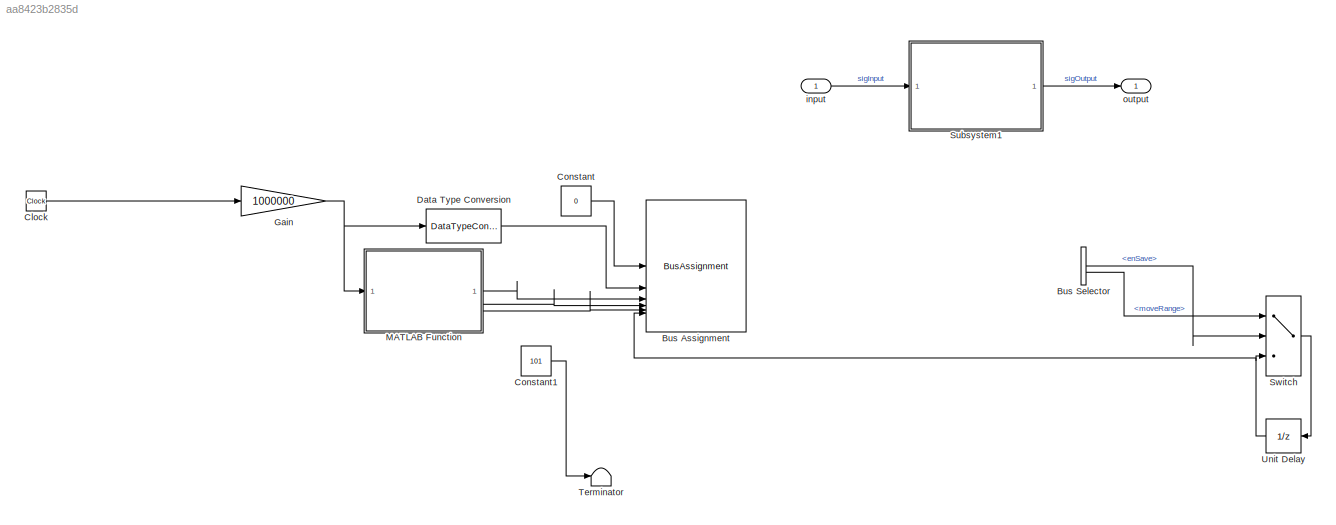
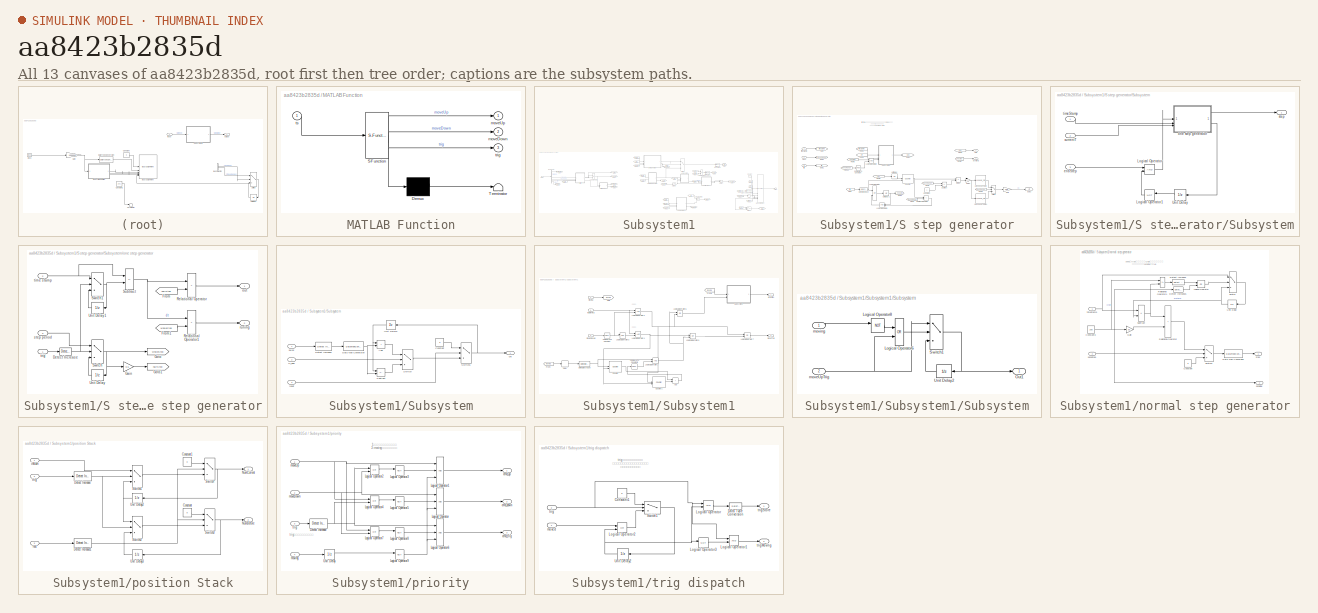
[diagram: thumbnail index - all 13 canvases of the model, root first then tree order]
MODEL slx_aa8423b2835d
KIND model
CONFIG AbsTol = auto
CONFIG EnableMultiTasking = on
CONFIG FixedStep = 0.0001
CONFIG MaxStep = auto
CONFIG MinStep = auto
CONFIG RelTol = 1e-3
CONFIG SampleTimeConstraint = Unconstrained
CONFIG SolverName = FixedStepDiscrete
CONFIG StartTime = 0.0
CONFIG StopTime = 0.5
BLOCK [BusAssignment] Bus Assignment
  AssignedSignals = timeStamp,moveUp,moveDown,trig,steps
  Commented = on
BLOCK [BusSelector] Bus Selector
  Commented = on
  OutputSignals = enSave,moveRange
BLOCK [Clock] Clock
  Commented = on
BLOCK [Constant] Constant
  Commented = on
  OutDataTypeStr = Bus: inStruct
  Value = 0
BLOCK [Constant] Constant1
  Commented = on
  OutDataTypeStr = uint32
  Value = 101
BLOCK [DataTypeConversion] Data Type Conversion
  Commented = on
  RndMeth = Floor
  SaturateOnIntegerOverflow = off
BLOCK [Gain] Gain
  Commented = on
  Gain = 1000000
  OutDataTypeStr = uint64
BLOCK [SubSystem] MATLAB Function
  Commented = on
  ErrorFcn = Stateflow.Translate.translate
  PermitHierarchicalResolution = ExplicitOnly
  SFBlockType = MATLAB Function
  TreatAsAtomicUnit = on
BLOCK [Demux] MATLAB Function/ Demux 
  Outputs = 1
BLOCK [S-Function] MATLAB Function/ SFunction 
  EnableBusSupport = on
  FunctionName = sf_sfun
  PortCounts = [1 4]
  SFcnIsStateOwnerBlock = off
  SFunctionDeploymentMode = off
  Tag = Stateflow S-Function 2
BLOCK [Terminator] MATLAB Function/ Terminator 
BLOCK [Outport] MATLAB Function/moveDown
  Port = 2
BLOCK [Outport] MATLAB Function/moveUp
BLOCK [Outport] MATLAB Function/trig
  Port = 3
BLOCK [Inport] MATLAB Function/ts
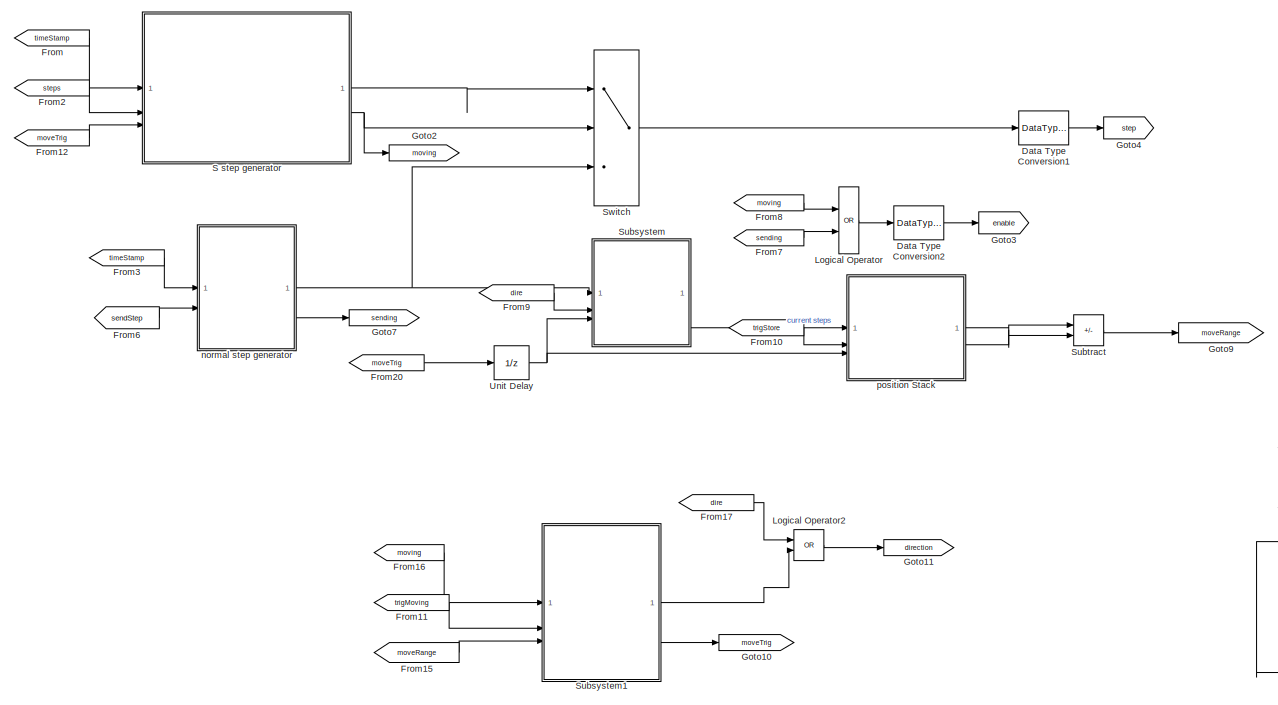
[diagram: Subsystem1 - part 1/3, center side, full height]
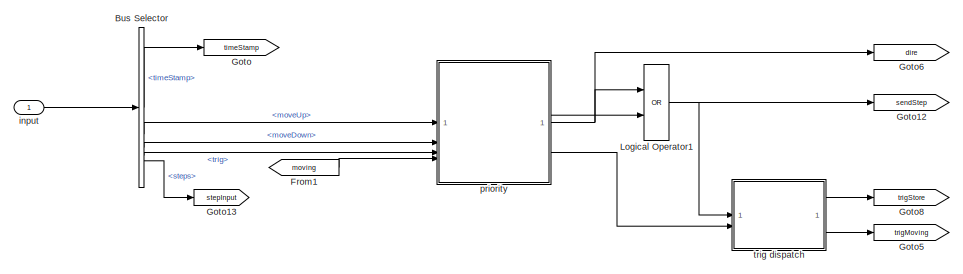
[diagram: Subsystem1 - part 2/3, middle left region]
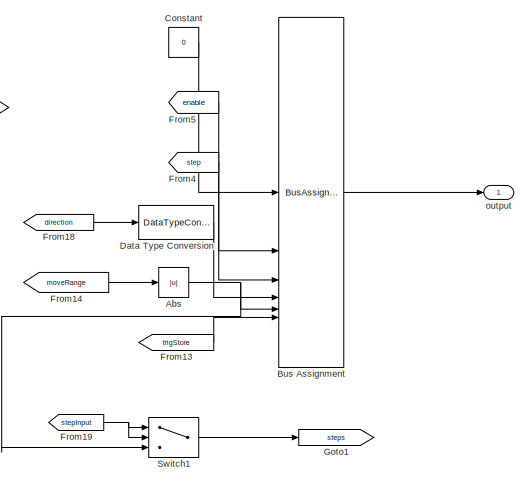
[diagram: Subsystem1 - part 3/3, middle right region]
BLOCK [SubSystem] Subsystem1
BLOCK [Abs] Subsystem1/Abs
  SaturateOnIntegerOverflow = off
BLOCK [BusAssignment] Subsystem1/Bus Assignment
  AssignedSignals = enable,step,direction,moveRange,enSave
BLOCK [BusSelector] Subsystem1/Bus Selector
  OutputSignals = timeStamp,moveUp,moveDown,trig,steps
BLOCK [Constant] Subsystem1/Constant
  OutDataTypeStr = Bus: outStruct
  Value = 0
BLOCK [DataTypeConversion] Subsystem1/Data Type Conversion
  RndMeth = Floor
  SaturateOnIntegerOverflow = off
BLOCK [DataTypeConversion] Subsystem1/Data Type Conversion1
  OutDataTypeStr = uint8
  RndMeth = Floor
  SaturateOnIntegerOverflow = off
BLOCK [DataTypeConversion] Subsystem1/Data Type Conversion2
  OutDataTypeStr = uint8
  RndMeth = Floor
  SaturateOnIntegerOverflow = off
BLOCK [From] Subsystem1/From
  GotoTag = timeStamp
BLOCK [From] Subsystem1/From1
  GotoTag = moving
BLOCK [From] Subsystem1/From10
  GotoTag = trigStore
BLOCK [From] Subsystem1/From11
  GotoTag = trigMoving
BLOCK [From] Subsystem1/From12
  GotoTag = moveTrig
BLOCK [From] Subsystem1/From13
  GotoTag = trigStore
BLOCK [From] Subsystem1/From14
  GotoTag = moveRange
BLOCK [From] Subsystem1/From15
  GotoTag = moveRange
BLOCK [From] Subsystem1/From16
  GotoTag = moving
BLOCK [From] Subsystem1/From17
  GotoTag = dire
BLOCK [From] Subsystem1/From18
  GotoTag = direction
BLOCK [From] Subsystem1/From19
  GotoTag = stepInput
BLOCK [From] Subsystem1/From2
  GotoTag = steps
BLOCK [From] Subsystem1/From20
  GotoTag = moveTrig
BLOCK [From] Subsystem1/From3
  GotoTag = timeStamp
BLOCK [From] Subsystem1/From4
  GotoTag = step
BLOCK [From] Subsystem1/From5
  GotoTag = enable
BLOCK [From] Subsystem1/From6
  GotoTag = sendStep
BLOCK [From] Subsystem1/From7
  GotoTag = sending
BLOCK [From] Subsystem1/From8
  GotoTag = moving
BLOCK [From] Subsystem1/From9
  GotoTag = dire
BLOCK [Goto] Subsystem1/Goto
  GotoTag = timeStamp
BLOCK [Goto] Subsystem1/Goto1
  GotoTag = steps
BLOCK [Goto] Subsystem1/Goto10
  GotoTag = moveTrig
BLOCK [Goto] Subsystem1/Goto11
  GotoTag = direction
BLOCK [Goto] Subsystem1/Goto12
  GotoTag = sendStep
BLOCK [Goto] Subsystem1/Goto13
  GotoTag = stepInput
BLOCK [Goto] Subsystem1/Goto2
  GotoTag = moving
BLOCK [Goto] Subsystem1/Goto3
  GotoTag = enable
BLOCK [Goto] Subsystem1/Goto4
  GotoTag = step
BLOCK [Goto] Subsystem1/Goto5
  GotoTag = trigMoving
BLOCK [Goto] Subsystem1/Goto6
  GotoTag = dire
BLOCK [Goto] Subsystem1/Goto7
  GotoTag = sending
BLOCK [Goto] Subsystem1/Goto8
  GotoTag = trigStore
BLOCK [Goto] Subsystem1/Goto9
  GotoTag = moveRange
BLOCK [Logic] Subsystem1/Logical Operator
  AllPortsSameDT = off
  Operator = OR
  OutDataTypeStr = boolean
BLOCK [Logic] Subsystem1/Logical Operator1
  AllPortsSameDT = off
  Operator = OR
  OutDataTypeStr = boolean
BLOCK [Logic] Subsystem1/Logical Operator2
  AllPortsSameDT = off
  Operator = OR
  OutDataTypeStr = boolean
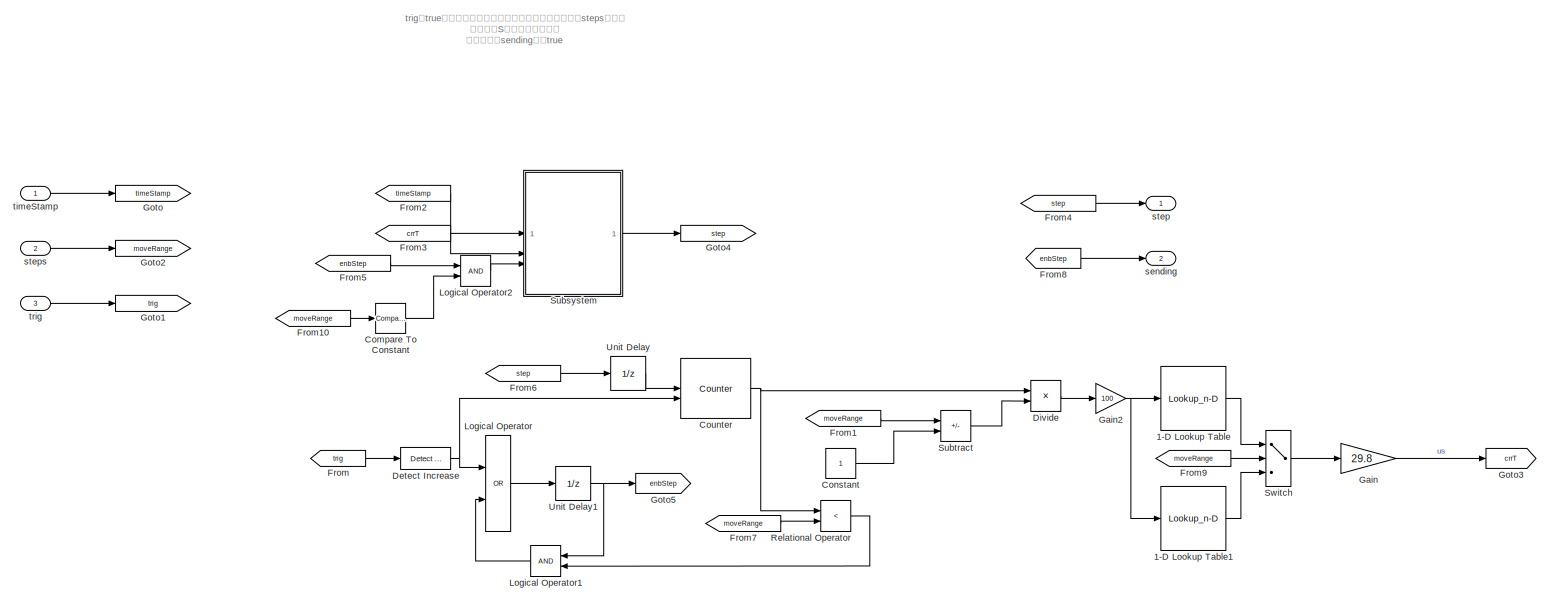
[diagram: Subsystem1/S step generator - part 1/1, most of the canvas]
BLOCK [SubSystem] Subsystem1/S step generator
BLOCK [Lookup_n-D] Subsystem1/S step generator/1-D Lookup Table
  BreakpointsForDimension1 = [0;1;2;3;4;5;6;94;95;96;97;98;99;100]
  ExtrapMethod = Clip
  InputPortMap = u0
  InternalRulePriority = Speed
  NumberOfTableDimensions = 1
  RndMeth = Simplest
  Table = [10.0250134994341;4.32011692273655;2.22140275816017;1.44932896411722;1.16529888822159;1.06081006262522;1.02237077185617;1.02237077185617;1.06081006262522;1.16529888822159;1.44932896411722;2.22140275816017;4.32011692273655;10.0250134994341]
  UseLastTableValue = on
BLOCK [Lookup_n-D] Subsystem1/S step generator/1-D Lookup Table1
  BreakpointsForDimension1 = [0;1;3;6;10;16;25;74;85;91;95;98;99;100]
  ExtrapMethod = Clip
  InputPortMap = u0
  InternalRulePriority = Speed
  NumberOfTableDimensions = 1
  RndMeth = Simplest
  Table = [10;9.1;7.6;5.8;4;2.3;1;1;2.3;4;5.8;7.6;9.1;10]
  UseLastTableValue = on
BLOCK [Reference] Subsystem1/S step generator/Compare To Constant  REF=simulink/Logic and Bit
Operations/Compare
To Constant
  SourceBlock = simulink/Logic and Bit\nOperations/Compare\nTo Constant
  SourceType = Compare To Constant
BLOCK [Constant] Subsystem1/S step generator/Constant
BLOCK [Reference] Subsystem1/S step generator/Counter  REF=dspswit3/Counter
  SourceBlock = dspswit3/Counter
  SourceType = Counter
BLOCK [Reference] Subsystem1/S step generator/Detect Increase  REF=simulink/Logic and Bit
Operations/Detect
Increase
  SourceBlock = simulink/Logic and Bit\nOperations/Detect\nIncrease
  SourceType = Detect Increase
BLOCK [Product] Subsystem1/S step generator/Divide
  Inputs = */
  OutDataTypeStr = single
BLOCK [From] Subsystem1/S step generator/From
  GotoTag = trig
BLOCK [From] Subsystem1/S step generator/From1
  GotoTag = moveRange
BLOCK [From] Subsystem1/S step generator/From10
  GotoTag = moveRange
BLOCK [From] Subsystem1/S step generator/From2
  GotoTag = timeStamp
BLOCK [From] Subsystem1/S step generator/From3
  GotoTag = crrT
BLOCK [From] Subsystem1/S step generator/From4
  GotoTag = step
BLOCK [From] Subsystem1/S step generator/From5
  GotoTag = enbStep
BLOCK [From] Subsystem1/S step generator/From6
  GotoTag = step
BLOCK [From] Subsystem1/S step generator/From7
  GotoTag = moveRange
BLOCK [From] Subsystem1/S step generator/From8
  GotoTag = enbStep
BLOCK [From] Subsystem1/S step generator/From9
  GotoTag = moveRange
BLOCK [Gain] Subsystem1/S step generator/Gain
  Gain = 29.8
BLOCK [Gain] Subsystem1/S step generator/Gain2
  Gain = 100
BLOCK [Goto] Subsystem1/S step generator/Goto
  GotoTag = timeStamp
BLOCK [Goto] Subsystem1/S step generator/Goto1
  GotoTag = trig
BLOCK [Goto] Subsystem1/S step generator/Goto2
  GotoTag = moveRange
BLOCK [Goto] Subsystem1/S step generator/Goto3
  GotoTag = crrT
BLOCK [Goto] Subsystem1/S step generator/Goto4
  GotoTag = step
BLOCK [Goto] Subsystem1/S step generator/Goto5
  GotoTag = enbStep
BLOCK [Logic] Subsystem1/S step generator/Logical Operator
  AllPortsSameDT = off
  Operator = OR
  OutDataTypeStr = boolean
BLOCK [Logic] Subsystem1/S step generator/Logical Operator1
  AllPortsSameDT = off
  OutDataTypeStr = boolean
BLOCK [Logic] Subsystem1/S step generator/Logical Operator2
  AllPortsSameDT = off
  OutDataTypeStr = boolean
BLOCK [RelationalOperator] Subsystem1/S step generator/Relational Operator
  InputSameDT = off
  Operator = <
  OutDataTypeStr = boolean
  RndMeth = Simplest
BLOCK [SubSystem] Subsystem1/S step generator/Subsystem
BLOCK [Logic] Subsystem1/S step generator/Subsystem/Logical Operator
  AllPortsSameDT = off
  OutDataTypeStr = boolean
BLOCK [Logic] Subsystem1/S step generator/Subsystem/Logical Operator1
  AllPortsSameDT = off
  Operator = NOT
  OutDataTypeStr = boolean
BLOCK [UnitDelay] Subsystem1/S step generator/Subsystem/Unit Delay
  HasFrameUpgradeWarning = on
  SampleTime = -1
BLOCK [Inport] Subsystem1/S step generator/Subsystem/currentT
  Port = 2
BLOCK [Inport] Subsystem1/S step generator/Subsystem/enbStep
  Port = 3
BLOCK [SubSystem] Subsystem1/S step generator/Subsystem/one step generator
BLOCK [Reference] Subsystem1/S step generator/Subsystem/one step generator/Detect Increase  REF=simulink/Logic and Bit
Operations/Detect
Increase
  SourceBlock = simulink/Logic and Bit\nOperations/Detect\nIncrease
  SourceType = Detect Increase
BLOCK [From] Subsystem1/S step generator/Subsystem/one step generator/From
  GotoTag = halfStep
BLOCK [From] Subsystem1/S step generator/Subsystem/one step generator/From1
  GotoTag = wholeStep
BLOCK [Gain] Subsystem1/S step generator/Subsystem/one step generator/Gain
  Gain = 0.5
BLOCK [Goto] Subsystem1/S step generator/Subsystem/one step generator/Goto
  GotoTag = wholeStep
BLOCK [Goto] Subsystem1/S step generator/Subsystem/one step generator/Goto1
  GotoTag = halfStep
BLOCK [RelationalOperator] Subsystem1/S step generator/Subsystem/one step generator/Relational Operator
  InputSameDT = off
  Operator = <
  OutDataTypeStr = boolean
  RndMeth = Simplest
BLOCK [RelationalOperator] Subsystem1/S step generator/Subsystem/one step generator/Relational Operator1
  InputSameDT = off
  Operator = <
  OutDataTypeStr = boolean
  RndMeth = Simplest
BLOCK [Sum] Subsystem1/S step generator/Subsystem/one step generator/Subtract
  IconShape = rectangular
  Inputs = +-
BLOCK [Switch] Subsystem1/S step generator/Subsystem/one step generator/Switch
  Criteria = u2 > Threshold
  InputSameDT = off
  SaturateOnIntegerOverflow = off
BLOCK [Switch] Subsystem1/S step generator/Subsystem/one step generator/Switch1
  Criteria = u2 > Threshold
  InputSameDT = off
  SaturateOnIntegerOverflow = off
BLOCK [UnitDelay] Subsystem1/S step generator/Subsystem/one step generator/Unit Delay
  HasFrameUpgradeWarning = on
  SampleTime = -1
BLOCK [UnitDelay] Subsystem1/S step generator/Subsystem/one step generator/Unit Delay1
  HasFrameUpgradeWarning = on
  SampleTime = -1
BLOCK [Outport] Subsystem1/S step generator/Subsystem/one step generator/out
BLOCK [Outport] Subsystem1/S step generator/Subsystem/one step generator/runing
  Port = 2
BLOCK [Inport] Subsystem1/S step generator/Subsystem/one step generator/step period
  Port = 3
BLOCK [Inport] Subsystem1/S step generator/Subsystem/one step generator/time stamp
  Port = 2
BLOCK [Inport] Subsystem1/S step generator/Subsystem/one step generator/trig
BLOCK [Outport] Subsystem1/S step generator/Subsystem/step
BLOCK [Inport] Subsystem1/S step generator/Subsystem/timeStamp
BLOCK [Sum] Subsystem1/S step generator/Subtract
  IconShape = rectangular
  Inputs = +-
BLOCK [Switch] Subsystem1/S step generator/Switch
  Criteria = u2 > Threshold
  InputSameDT = off
  SaturateOnIntegerOverflow = off
  Threshold = 200
BLOCK [UnitDelay] Subsystem1/S step generator/Unit Delay
  HasFrameUpgradeWarning = on
  SampleTime = -1
BLOCK [UnitDelay] Subsystem1/S step generator/Unit Delay1
  HasFrameUpgradeWarning = on
  SampleTime = -1
BLOCK [Outport] Subsystem1/S step generator/sending
  Port = 2
BLOCK [Outport] Subsystem1/S step generator/step
BLOCK [Inport] Subsystem1/S step generator/steps
  Port = 2
BLOCK [Inport] Subsystem1/S step generator/timeStamp
BLOCK [Inport] Subsystem1/S step generator/trig
  Port = 3
BLOCK [SubSystem] Subsystem1/Subsystem
BLOCK [Sum] Subsystem1/Subsystem/Add
  IconShape = rectangular
BLOCK [Constant] Subsystem1/Subsystem/Constant
  OutDataTypeStr = int32
  Value = 0
BLOCK [DataTypeConversion] Subsystem1/Subsystem/Data Type Conversion
  OutDataTypeStr = uint8
  RndMeth = Floor
  SaturateOnIntegerOverflow = off
BLOCK [Reference] Subsystem1/Subsystem/Detect Increase  REF=simulink/Logic and Bit
Operations/Detect
Increase
  SourceBlock = simulink/Logic and Bit\nOperations/Detect\nIncrease
  SourceType = Detect Increase
BLOCK [Sum] Subsystem1/Subsystem/Subtract
  IconShape = rectangular
  Inputs = +-
BLOCK [Switch] Subsystem1/Subsystem/Switch
  Criteria = u2 > Threshold
  InputSameDT = off
  SaturateOnIntegerOverflow = off
BLOCK [Switch] Subsystem1/Subsystem/Switch1
  Criteria = u2 > Threshold
  InputSameDT = off
  OutDataTypeStr = int32
  SaturateOnIntegerOverflow = off
BLOCK [UnitDelay] Subsystem1/Subsystem/Unit Delay2
  HasFrameUpgradeWarning = on
  SampleTime = -1
BLOCK [Outport] Subsystem1/Subsystem/cnt
BLOCK [Inport] Subsystem1/Subsystem/is_add
  Port = 2
BLOCK [Inport] Subsystem1/Subsystem/pulse
BLOCK [Inport] Subsystem1/Subsystem/reset
  Port = 3
BLOCK [SubSystem] Subsystem1/Subsystem1
BLOCK [Sum] Subsystem1/Subsystem1/Add
  IconShape = rectangular
BLOCK [Reference] Subsystem1/Subsystem1/Compare To Constant  REF=simulink/Logic and Bit
Operations/Compare
To Constant
  SourceBlock = simulink/Logic and Bit\nOperations/Compare\nTo Constant
  SourceType = Compare To Constant
BLOCK [Reference] Subsystem1/Subsystem1/Compare To Constant1  REF=simulink/Logic and Bit
Operations/Compare
To Constant
  SourceBlock = simulink/Logic and Bit\nOperations/Compare\nTo Constant
  SourceType = Compare To Constant
BLOCK [Reference] Subsystem1/Subsystem1/Counter  REF=dspswit3/Counter
  SourceBlock = dspswit3/Counter
  SourceType = Counter
BLOCK [Reference] Subsystem1/Subsystem1/Counter1  REF=dspswit3/Counter
  SourceBlock = dspswit3/Counter
  SourceType = Counter
BLOCK [Delay] Subsystem1/Subsystem1/Delay
  DelayLength = 1000
  InputPortMap = u0
BLOCK [Reference] Subsystem1/Subsystem1/Detect Decrease  REF=simulink/Logic and Bit
Operations/Detect
Decrease
  SourceBlock = simulink/Logic and Bit\nOperations/Detect\nDecrease
  SourceType = Detect Decrease
BLOCK [From] Subsystem1/Subsystem1/From
  GotoTag = moving
BLOCK [From] Subsystem1/Subsystem1/From1
  GotoTag = moving
BLOCK [Goto] Subsystem1/Subsystem1/Goto
  GotoTag = moving
BLOCK [Logic] Subsystem1/Subsystem1/Logical Operator1
  AllPortsSameDT = off
  OutDataTypeStr = boolean
BLOCK [Logic] Subsystem1/Subsystem1/Logical Operator2
  AllPortsSameDT = off
  OutDataTypeStr = boolean
BLOCK [Logic] Subsystem1/Subsystem1/Logical Operator3
  AllPortsSameDT = off
  Operator = NOT
  OutDataTypeStr = boolean
BLOCK [Logic] Subsystem1/Subsystem1/Logical Operator4
  AllPortsSameDT = off
  OutDataTypeStr = boolean
BLOCK [Logic] Subsystem1/Subsystem1/Logical Operator5
  AllPortsSameDT = off
  Operator = OR
  OutDataTypeStr = boolean
BLOCK [Logic] Subsystem1/Subsystem1/Logical Operator7
  AllPortsSameDT = off
  Operator = OR
  OutDataTypeStr = boolean
BLOCK [Logic] Subsystem1/Subsystem1/Logical Operator9
  AllPortsSameDT = off
  Operator = OR
  OutDataTypeStr = boolean
BLOCK [SubSystem] Subsystem1/Subsystem1/Subsystem
BLOCK [Logic] Subsystem1/Subsystem1/Subsystem/Logical Operator6
  AllPortsSameDT = off
  Operator = OR
  OutDataTypeStr = boolean
BLOCK [Logic] Subsystem1/Subsystem1/Subsystem/Logical Operator8
  AllPortsSameDT = off
  Operator = NOT
  OutDataTypeStr = boolean
BLOCK [Outport] Subsystem1/Subsystem1/Subsystem/Out1
BLOCK [Switch] Subsystem1/Subsystem1/Subsystem/Switch1
  Criteria = u2 > Threshold
  InputSameDT = off
  SaturateOnIntegerOverflow = off
BLOCK [UnitDelay] Subsystem1/Subsystem1/Subsystem/Unit Delay2
  HasFrameUpgradeWarning = on
  SampleTime = -1
BLOCK [Inport] Subsystem1/Subsystem1/Subsystem/moveUpTrig
  Port = 2
BLOCK [Inport] Subsystem1/Subsystem1/Subsystem/moving
BLOCK [Outport] Subsystem1/Subsystem1/direction
BLOCK [Inport] Subsystem1/Subsystem1/moveRange
  Port = 3
BLOCK [Outport] Subsystem1/Subsystem1/moveTrig
  Port = 2
BLOCK [Inport] Subsystem1/Subsystem1/moving
BLOCK [Inport] Subsystem1/Subsystem1/trigMoving
  Port = 2
BLOCK [Sum] Subsystem1/Subtract
  IconShape = rectangular
  Inputs = +-
BLOCK [Switch] Subsystem1/Switch
  Criteria = u2 > Threshold
  InputSameDT = off
  SaturateOnIntegerOverflow = off
BLOCK [Switch] Subsystem1/Switch1
  Criteria = u2 > Threshold
  InputSameDT = off
  SaturateOnIntegerOverflow = off
BLOCK [UnitDelay] Subsystem1/Unit Delay
  HasFrameUpgradeWarning = on
  SampleTime = -1
BLOCK [Inport] Subsystem1/input
BLOCK [SubSystem] Subsystem1/normal step generator
BLOCK [Constant] Subsystem1/normal step generator/Constant
  OutDataTypeStr = boolean
  Value = 0
BLOCK [Constant] Subsystem1/normal step generator/Constant3
  Value = 298
BLOCK [DataTypeConversion] Subsystem1/normal step generator/Data Type Conversion
  OutDataTypeStr = uint8
  RndMeth = Floor
  SaturateOnIntegerOverflow = off
BLOCK [Reference] Subsystem1/normal step generator/Detect Increase  REF=simulink/Logic and Bit
Operations/Detect
Increase
  SourceBlock = simulink/Logic and Bit\nOperations/Detect\nIncrease
  SourceType = Detect Increase
BLOCK [Reference] Subsystem1/normal step generator/Detect Increase1  REF=simulink/Logic and Bit
Operations/Detect
Increase
  SourceBlock = simulink/Logic and Bit\nOperations/Detect\nIncrease
  SourceType = Detect Increase
BLOCK [Gain] Subsystem1/normal step generator/Gain
  Gain = 0.5
BLOCK [Logic] Subsystem1/normal step generator/Logical Operator
  AllPortsSameDT = off
  Operator = OR
  OutDataTypeStr = boolean
BLOCK [RelationalOperator] Subsystem1/normal step generator/Relational Operator
  InputSameDT = off
  Operator = <
  OutDataTypeStr = boolean
  RndMeth = Simplest
BLOCK [RelationalOperator] Subsystem1/normal step generator/Relational Operator1
  InputSameDT = off
  Operator = <=
  OutDataTypeStr = boolean
  RndMeth = Simplest
BLOCK [Sum] Subsystem1/normal step generator/Subtract
  IconShape = rectangular
  Inputs = +-
BLOCK [Switch] Subsystem1/normal step generator/Switch
  Criteria = u2 > Threshold
  InputSameDT = off
  SaturateOnIntegerOverflow = off
BLOCK [Switch] Subsystem1/normal step generator/Switch1
  Criteria = u2 > Threshold
  InputSameDT = off
  SaturateOnIntegerOverflow = off
BLOCK [UnitDelay] Subsystem1/normal step generator/Unit Delay
  HasFrameUpgradeWarning = on
  SampleTime = -1
BLOCK [Inport] Subsystem1/normal step generator/sendStep
  Port = 2
BLOCK [Outport] Subsystem1/normal step generator/sending
  Port = 2
BLOCK [Outport] Subsystem1/normal step generator/step
BLOCK [Inport] Subsystem1/normal step generator/timeStamp
BLOCK [Outport] Subsystem1/output
BLOCK [SubSystem] Subsystem1/position Stack
BLOCK [Constant] Subsystem1/position Stack/Constant
  OutDataTypeStr = int32
  Value = 0
BLOCK [Constant] Subsystem1/position Stack/Constant1
  OutDataTypeStr = int32
  Value = 0
BLOCK [Reference] Subsystem1/position Stack/Detect Increase  REF=simulink/Logic and Bit
Operations/Detect
Increase
  SourceBlock = simulink/Logic and Bit\nOperations/Detect\nIncrease
  SourceType = Detect Increase
BLOCK [Reference] Subsystem1/position Stack/Detect Increase1  REF=simulink/Logic and Bit
Operations/Detect
Increase
  SourceBlock = simulink/Logic and Bit\nOperations/Detect\nIncrease
  SourceType = Detect Increase
BLOCK [Outport] Subsystem1/position Stack/NumBefore
  Port = 2
BLOCK [Outport] Subsystem1/position Stack/NumCurrent
BLOCK [Switch] Subsystem1/position Stack/Switch
  Criteria = u2 > Threshold
  InputSameDT = off
  SaturateOnIntegerOverflow = off
BLOCK [Switch] Subsystem1/position Stack/Switch1
  Criteria = u2 > Threshold
  InputSameDT = off
  SaturateOnIntegerOverflow = off
BLOCK [Switch] Subsystem1/position Stack/Switch2
  Criteria = u2 > Threshold
  InputSameDT = off
  SaturateOnIntegerOverflow = off
BLOCK [Switch] Subsystem1/position Stack/Switch3
  Criteria = u2 > Threshold
  InputSameDT = off
  SaturateOnIntegerOverflow = off
BLOCK [UnitDelay] Subsystem1/position Stack/Unit Delay2
  HasFrameUpgradeWarning = on
  SampleTime = -1
BLOCK [UnitDelay] Subsystem1/position Stack/Unit Delay3
  HasFrameUpgradeWarning = on
  SampleTime = -1
BLOCK [Inport] Subsystem1/position Stack/inNum
BLOCK [Inport] Subsystem1/position Stack/rest
  Port = 3
BLOCK [Inport] Subsystem1/position Stack/trig
  Port = 2
BLOCK [SubSystem] Subsystem1/priority
BLOCK [Reference] Subsystem1/priority/Detect Increase  REF=simulink/Logic and Bit
Operations/Detect
Increase
  SourceBlock = simulink/Logic and Bit\nOperations/Detect\nIncrease
  SourceType = Detect Increase
BLOCK [Logic] Subsystem1/priority/Logical Operator
  AllPortsSameDT = off
  Inputs = 3
  OutDataTypeStr = boolean
BLOCK [Logic] Subsystem1/priority/Logical Operator1
  AllPortsSameDT = off
  Inputs = 3
  OutDataTypeStr = boolean
BLOCK [Logic] Subsystem1/priority/Logical Operator2
  AllPortsSameDT = off
  Operator = OR
  OutDataTypeStr = boolean
BLOCK [Logic] Subsystem1/priority/Logical Operator3
  AllPortsSameDT = off
  Operator = NOT
  OutDataTypeStr = boolean
BLOCK [Logic] Subsystem1/priority/Logical Operator4
  AllPortsSameDT = off
  Operator = OR
  OutDataTypeStr = boolean
BLOCK [Logic] Subsystem1/priority/Logical Operator5
  AllPortsSameDT = off
  Operator = NOT
  OutDataTypeStr = boolean
BLOCK [Logic] Subsystem1/priority/Logical Operator6
  AllPortsSameDT = off
  Inputs = 3
  OutDataTypeStr = boolean
BLOCK [Logic] Subsystem1/priority/Logical Operator7
  AllPortsSameDT = off
  Operator = OR
  OutDataTypeStr = boolean
BLOCK [Logic] Subsystem1/priority/Logical Operator8
  AllPortsSameDT = off
  Operator = NOT
  OutDataTypeStr = boolean
BLOCK [Logic] Subsystem1/priority/Logical Operator9
  AllPortsSameDT = off
  Operator = NOT
  OutDataTypeStr = boolean
BLOCK [UnitDelay] Subsystem1/priority/Unit Delay
  HasFrameUpgradeWarning = on
  SampleTime = -1
BLOCK [Outport] Subsystem1/priority/cmd_down
  Port = 2
BLOCK [Outport] Subsystem1/priority/cmd_trig
  Port = 3
BLOCK [Outport] Subsystem1/priority/cmd_up
BLOCK [Inport] Subsystem1/priority/moveDown
  Port = 2
BLOCK [Inport] Subsystem1/priority/moveUp
BLOCK [Inport] Subsystem1/priority/moving
  Port = 4
BLOCK [Inport] Subsystem1/priority/trig
  Port = 3
BLOCK [SubSystem] Subsystem1/trig dispatch
BLOCK [Constant] Subsystem1/trig dispatch/Constant1
  OutDataTypeStr = boolean
  Value = 0
BLOCK [DataTypeConversion] Subsystem1/trig dispatch/Data Type Conversion
  OutDataTypeStr = uint8
  RndMeth = Floor
  SaturateOnIntegerOverflow = off
BLOCK [Logic] Subsystem1/trig dispatch/Logical Operator
  AllPortsSameDT = off
  OutDataTypeStr = boolean
BLOCK [Logic] Subsystem1/trig dispatch/Logical Operator1
  AllPortsSameDT = off
  OutDataTypeStr = boolean
BLOCK [Logic] Subsystem1/trig dispatch/Logical Operator2
  AllPortsSameDT = off
  Operator = OR
  OutDataTypeStr = boolean
BLOCK [Logic] Subsystem1/trig dispatch/Logical Operator3
  AllPortsSameDT = off
  Operator = NOT
  OutDataTypeStr = boolean
BLOCK [Switch] Subsystem1/trig dispatch/Switch1
  Criteria = u2 > Threshold
  InputSameDT = off
  SaturateOnIntegerOverflow = off
BLOCK [UnitDelay] Subsystem1/trig dispatch/Unit Delay2
  HasFrameUpgradeWarning = on
  SampleTime = -1
BLOCK [Inport] Subsystem1/trig dispatch/moved
BLOCK [Inport] Subsystem1/trig dispatch/trig
  Port = 2
BLOCK [Outport] Subsystem1/trig dispatch/trigMoving
  Port = 2
BLOCK [Outport] Subsystem1/trig dispatch/trigStore
BLOCK [Switch] Switch
  Commented = on
  Criteria = u2 > Threshold
  InputSameDT = off
  SaturateOnIntegerOverflow = off
BLOCK [Terminator] Terminator
  Commented = on
BLOCK [UnitDelay] Unit Delay
  Commented = on
  HasFrameUpgradeWarning = on
  SampleTime = -1
BLOCK [Inport] input
  OutDataTypeStr = Bus: inStruct
BLOCK [Outport] output
  OutDataTypeStr = Bus: outStruct
ANNOTATION Subsystem1/S step generator: trig为true的时候（上升沿），开始发送方波，总共发送steps个脉冲 发送时以S曲线为上升下降沿 发送过程中sending维持true
ANNOTATION Subsystem1/Subsystem1: 触发上升
ANNOTATION Subsystem1/Subsystem1: 触发下降
ANNOTATION Subsystem1/normal step generator: send为true的时候，以cycle为周期发送方波 发送过程中，sending为true
ANNOTATION Subsystem1/priority: 1、互斥，先按下的按钮有效 2、moving状态所有按钮无效
ANNOTATION Subsystem1/priority: trig信号整理为上跳沿有效
ANNOTATION Subsystem1/trig dispatch: trig是上升沿产生的单脉冲 如果之前运动过，则要触发存储当前位置 否则触发完定步数运动
LINE Bus Selector:1 -> Switch:2
LINE Bus Selector:2 -> Switch:1
LINE Clock:1 -> Gain:1
LINE Constant1:1 -> Terminator:1
LINE Constant:1 -> Bus Assignment:1
LINE Data Type Conversion:1 -> Bus Assignment:2
NET Gain:1 -> Data Type Conversion:1, MATLAB Function:1
LINE MATLAB Function:1 -> Bus Assignment:3
LINE MATLAB Function:2 -> Bus Assignment:4
LINE MATLAB Function:3 -> Bus Assignment:5
NET Subsystem1/Abs:1 -> Subsystem1/Bus Assignment:5, Subsystem1/Switch1:3
LINE Subsystem1/Bus Assignment:1 -> Subsystem1/output:1
LINE Subsystem1/Bus Selector:1 -> Subsystem1/Goto:1
LINE Subsystem1/Bus Selector:2 -> Subsystem1/priority:1
LINE Subsystem1/Bus Selector:3 -> Subsystem1/priority:2
LINE Subsystem1/Bus Selector:4 -> Subsystem1/priority:3
LINE Subsystem1/Bus Selector:5 -> Subsystem1/Goto13:1
LINE Subsystem1/Constant:1 -> Subsystem1/Bus Assignment:1
LINE Subsystem1/Data Type Conversion1:1 -> Subsystem1/Goto4:1
LINE Subsystem1/Data Type Conversion2:1 -> Subsystem1/Goto3:1
LINE Subsystem1/Data Type Conversion:1 -> Subsystem1/Bus Assignment:4
LINE Subsystem1/From10:1 -> Subsystem1/position Stack:2
LINE Subsystem1/From11:1 -> Subsystem1/Subsystem1:2
LINE Subsystem1/From12:1 -> Subsystem1/S step generator:3
LINE Subsystem1/From13:1 -> Subsystem1/Bus Assignment:6
LINE Subsystem1/From14:1 -> Subsystem1/Abs:1
LINE Subsystem1/From15:1 -> Subsystem1/Subsystem1:3
LINE Subsystem1/From16:1 -> Subsystem1/Subsystem1:1
LINE Subsystem1/From17:1 -> Subsystem1/Logical Operator2:1
LINE Subsystem1/From18:1 -> Subsystem1/Data Type Conversion:1
NET Subsystem1/From19:1 -> Subsystem1/Switch1:1, Subsystem1/Switch1:2
LINE Subsystem1/From1:1 -> Subsystem1/priority:4
LINE Subsystem1/From20:1 -> Subsystem1/Unit Delay:1
LINE Subsystem1/From2:1 -> Subsystem1/S step generator:2
LINE Subsystem1/From3:1 -> Subsystem1/normal step generator:1
LINE Subsystem1/From4:1 -> Subsystem1/Bus Assignment:3
LINE Subsystem1/From5:1 -> Subsystem1/Bus Assignment:2
LINE Subsystem1/From6:1 -> Subsystem1/normal step generator:2
LINE Subsystem1/From7:1 -> Subsystem1/Logical Operator:2
LINE Subsystem1/From8:1 -> Subsystem1/Logical Operator:1
LINE Subsystem1/From9:1 -> Subsystem1/Subsystem:2
LINE Subsystem1/From:1 -> Subsystem1/S step generator:1
NET Subsystem1/Logical Operator1:1 -> Subsystem1/Goto12:1, Subsystem1/trig dispatch:1
LINE Subsystem1/Logical Operator2:1 -> Subsystem1/Goto11:1
LINE Subsystem1/Logical Operator:1 -> Subsystem1/Data Type Conversion2:1
LINE Subsystem1/S step generator/1-D Lookup Table1:1 -> Subsystem1/S step generator/Switch:3
LINE Subsystem1/S step generator/1-D Lookup Table:1 -> Subsystem1/S step generator/Switch:1
LINE Subsystem1/S step generator/Compare To Constant:1 -> Subsystem1/S step generator/Logical Operator2:2
LINE Subsystem1/S step generator/Constant:1 -> Subsystem1/S step generator/Subtract:2
NET Subsystem1/S step generator/Counter:1 -> Subsystem1/S step generator/Divide:1, Subsystem1/S step generator/Relational Operator:1
NET Subsystem1/S step generator/Detect Increase:1 -> Subsystem1/S step generator/Counter:2, Subsystem1/S step generator/Logical Operator:1
LINE Subsystem1/S step generator/Divide:1 -> Subsystem1/S step generator/Gain2:1
LINE Subsystem1/S step generator/From10:1 -> Subsystem1/S step generator/Compare To Constant:1
LINE Subsystem1/S step generator/From1:1 -> Subsystem1/S step generator/Subtract:1
LINE Subsystem1/S step generator/From2:1 -> Subsystem1/S step generator/Subsystem:1
LINE Subsystem1/S step generator/From3:1 -> Subsystem1/S step generator/Subsystem:2
LINE Subsystem1/S step generator/From4:1 -> Subsystem1/S step generator/step:1
LINE Subsystem1/S step generator/From5:1 -> Subsystem1/S step generator/Logical Operator2:1
LINE Subsystem1/S step generator/From6:1 -> Subsystem1/S step generator/Unit Delay:1
LINE Subsystem1/S step generator/From7:1 -> Subsystem1/S step generator/Relational Operator:2
LINE Subsystem1/S step generator/From8:1 -> Subsystem1/S step generator/sending:1
LINE Subsystem1/S step generator/From9:1 -> Subsystem1/S step generator/Switch:2
LINE Subsystem1/S step generator/From:1 -> Subsystem1/S step generator/Detect Increase:1
NET Subsystem1/S step generator/Gain2:1 -> Subsystem1/S step generator/1-D Lookup Table1:1, Subsystem1/S step generator/1-D Lookup Table:1
LINE Subsystem1/S step generator/Gain:1 -> Subsystem1/S step generator/Goto3:1
LINE Subsystem1/S step generator/Logical Operator1:1 -> Subsystem1/S step generator/Logical Operator:2
LINE Subsystem1/S step generator/Logical Operator2:1 -> Subsystem1/S step generator/Subsystem:3
LINE Subsystem1/S step generator/Logical Operator:1 -> Subsystem1/S step generator/Unit Delay1:1
LINE Subsystem1/S step generator/Relational Operator:1 -> Subsystem1/S step generator/Logical Operator1:2
LINE Subsystem1/S step generator/Subsystem/Logical Operator1:1 -> Subsystem1/S step generator/Subsystem/Logical Operator:2
LINE Subsystem1/S step generator/Subsystem/Logical Operator:1 -> Subsystem1/S step generator/Subsystem/one step generator:1
LINE Subsystem1/S step generator/Subsystem/Unit Delay:1 -> Subsystem1/S step generator/Subsystem/Logical Operator1:1
LINE Subsystem1/S step generator/Subsystem/currentT:1 -> Subsystem1/S step generator/Subsystem/one step generator:3
LINE Subsystem1/S step generator/Subsystem/enbStep:1 -> Subsystem1/S step generator/Subsystem/Logical Operator:1
NET Subsystem1/S step generator/Subsystem/one step generator/Detect Increase:1 -> Subsystem1/S step generator/Subsystem/one step generator/Switch1:2, Subsystem1/S step generator/Subsystem/one step generator/Switch:2
LINE Subsystem1/S step generator/Subsystem/one step generator/From1:1 -> Subsystem1/S step generator/Subsystem/one step generator/Relational Operator1:2
LINE Subsystem1/S step generator/Subsystem/one step generator/From:1 -> Subsystem1/S step generator/Subsystem/one step generator/Relational Operator:2
LINE Subsystem1/S step generator/Subsystem/one step generator/Gain:1 -> Subsystem1/S step generator/Subsystem/one step generator/Goto1:1
LINE Subsystem1/S step generator/Subsystem/one step generator/Relational Operator1:1 -> Subsystem1/S step generator/Subsystem/one step generator/runing:1
LINE Subsystem1/S step generator/Subsystem/one step generator/Relational Operator:1 -> Subsystem1/S step generator/Subsystem/one step generator/out:1
NET Subsystem1/S step generator/Subsystem/one step generator/Subtract:1 -> Subsystem1/S step generator/Subsystem/one step generator/Relational Operator1:1, Subsystem1/S step generator/Subsystem/one step generator/Relational Operator:1
NET Subsystem1/S step generator/Subsystem/one step generator/Switch1:1 -> Subsystem1/S step generator/Subsystem/one step generator/Subtract:2, Subsystem1/S step generator/Subsystem/one step generator/Unit Delay1:1
NET Subsystem1/S step generator/Subsystem/one step generator/Switch:1 -> Subsystem1/S step generator/Subsystem/one step generator/Gain:1, Subsystem1/S step generator/Subsystem/one step generator/Goto:1, Subsystem1/S step generator/Subsystem/one step generator/Unit Delay:1
LINE Subsystem1/S step generator/Subsystem/one step generator/Unit Delay1:1 -> Subsystem1/S step generator/Subsystem/one step generator/Switch1:3
LINE Subsystem1/S step generator/Subsystem/one step generator/Unit Delay:1 -> Subsystem1/S step generator/Subsystem/one step generator/Switch:3
LINE Subsystem1/S step generator/Subsystem/one step generator/step period:1 -> Subsystem1/S step generator/Subsystem/one step generator/Switch:1
NET Subsystem1/S step generator/Subsystem/one step generator/time stamp:1 -> Subsystem1/S step generator/Subsystem/one step generator/Subtract:1, Subsystem1/S step generator/Subsystem/one step generator/Switch1:1
LINE Subsystem1/S step generator/Subsystem/one step generator/trig:1 -> Subsystem1/S step generator/Subsystem/one step generator/Detect Increase:1
LINE Subsystem1/S step generator/Subsystem/one step generator:1 -> Subsystem1/S step generator/Subsystem/step:1
LINE Subsystem1/S step generator/Subsystem/one step generator:2 -> Subsystem1/S step generator/Subsystem/Unit Delay:1
LINE Subsystem1/S step generator/Subsystem/timeStamp:1 -> Subsystem1/S step generator/Subsystem/one step generator:2
LINE Subsystem1/S step generator/Subsystem:1 -> Subsystem1/S step generator/Goto4:1
LINE Subsystem1/S step generator/Subtract:1 -> Subsystem1/S step generator/Divide:2
LINE Subsystem1/S step generator/Switch:1 -> Subsystem1/S step generator/Gain:1
NET Subsystem1/S step generator/Unit Delay1:1 -> Subsystem1/S step generator/Goto5:1, Subsystem1/S step generator/Logical Operator1:1
LINE Subsystem1/S step generator/Unit Delay:1 -> Subsystem1/S step generator/Counter:1
LINE Subsystem1/S step generator/steps:1 -> Subsystem1/S step generator/Goto2:1
LINE Subsystem1/S step generator/timeStamp:1 -> Subsystem1/S step generator/Goto:1
LINE Subsystem1/S step generator/trig:1 -> Subsystem1/S step generator/Goto1:1
LINE Subsystem1/S step generator:1 -> Subsystem1/Switch:1
NET Subsystem1/S step generator:2 -> Subsystem1/Goto2:1, Subsystem1/Switch:2
LINE Subsystem1/Subsystem/Add:1 -> Subsystem1/Subsystem/Switch:1
LINE Subsystem1/Subsystem/Constant:1 -> Subsystem1/Subsystem/Switch1:1
NET Subsystem1/Subsystem/Data Type Conversion:1 -> Subsystem1/Subsystem/Add:2, Subsystem1/Subsystem/Subtract:2
LINE Subsystem1/Subsystem/Detect Increase:1 -> Subsystem1/Subsystem/Data Type Conversion:1
LINE Subsystem1/Subsystem/Subtract:1 -> Subsystem1/Subsystem/Switch:3
NET Subsystem1/Subsystem/Switch1:1 -> Subsystem1/Subsystem/Unit Delay2:1, Subsystem1/Subsystem/cnt:1
LINE Subsystem1/Subsystem/Switch:1 -> Subsystem1/Subsystem/Switch1:3
NET Subsystem1/Subsystem/Unit Delay2:1 -> Subsystem1/Subsystem/Add:1, Subsystem1/Subsystem/Subtract:1
LINE Subsystem1/Subsystem/is_add:1 -> Subsystem1/Subsystem/Switch:2
LINE Subsystem1/Subsystem/pulse:1 -> Subsystem1/Subsystem/Detect Increase:1
LINE Subsystem1/Subsystem/reset:1 -> Subsystem1/Subsystem/Switch1:2
LINE Subsystem1/Subsystem1/Add:1 -> Subsystem1/Subsystem1/Compare To Constant1:1
LINE Subsystem1/Subsystem1/Compare To Constant1:1 -> Subsystem1/Subsystem1/Logical Operator1:2
NET Subsystem1/Subsystem1/Compare To Constant:1 -> Subsystem1/Subsystem1/Logical Operator2:2, Subsystem1/Subsystem1/Logical Operator3:1
LINE Subsystem1/Subsystem1/Counter1:1 -> Subsystem1/Subsystem1/Add:2
LINE Subsystem1/Subsystem1/Counter:1 -> Subsystem1/Subsystem1/Add:1
LINE Subsystem1/Subsystem1/Delay:1 -> Subsystem1/Subsystem1/Detect Decrease:1
NET Subsystem1/Subsystem1/Detect Decrease:1 -> Subsystem1/Subsystem1/Counter:1, Subsystem1/Subsystem1/Logical Operator1:1
LINE Subsystem1/Subsystem1/From1:1 -> Subsystem1/Subsystem1/Subsystem:1
LINE Subsystem1/Subsystem1/From:1 -> Subsystem1/Subsystem1/Delay:1
NET Subsystem1/Subsystem1/Logical Operator1:1 -> Subsystem1/Subsystem1/Logical Operator5:1, Subsystem1/Subsystem1/Logical Operator9:2
NET Subsystem1/Subsystem1/Logical Operator2:1 -> Subsystem1/Subsystem1/Counter1:1, Subsystem1/Subsystem1/Logical Operator5:2, Subsystem1/Subsystem1/Logical Operator7:1
LINE Subsystem1/Subsystem1/Logical Operator3:1 -> Subsystem1/Subsystem1/Logical Operator4:2
NET Subsystem1/Subsystem1/Logical Operator4:1 -> Subsystem1/Subsystem1/Counter1:2, Subsystem1/Subsystem1/Counter:2, Subsystem1/Subsystem1/Logical Operator9:1
LINE Subsystem1/Subsystem1/Logical Operator5:1 -> Subsystem1/Subsystem1/Subsystem:2
LINE Subsystem1/Subsystem1/Logical Operator7:1 -> Subsystem1/Subsystem1/moveTrig:1
LINE Subsystem1/Subsystem1/Logical Operator9:1 -> Subsystem1/Subsystem1/Logical Operator7:2
LINE Subsystem1/Subsystem1/Subsystem/Logical Operator6:1 -> Subsystem1/Subsystem1/Subsystem/Switch1:2
LINE Subsystem1/Subsystem1/Subsystem/Logical Operator8:1 -> Subsystem1/Subsystem1/Subsystem/Logical Operator6:1
NET Subsystem1/Subsystem1/Subsystem/Switch1:1 -> Subsystem1/Subsystem1/Subsystem/Out1:1, Subsystem1/Subsystem1/Subsystem/Unit Delay2:1
LINE Subsystem1/Subsystem1/Subsystem/Unit Delay2:1 -> Subsystem1/Subsystem1/Subsystem/Switch1:3
NET Subsystem1/Subsystem1/Subsystem/moveUpTrig:1 -> Subsystem1/Subsystem1/Subsystem/Logical Operator6:2, Subsystem1/Subsystem1/Subsystem/Switch1:1
LINE Subsystem1/Subsystem1/Subsystem/moving:1 -> Subsystem1/Subsystem1/Subsystem/Logical Operator8:1
LINE Subsystem1/Subsystem1/Subsystem:1 -> Subsystem1/Subsystem1/direction:1
LINE Subsystem1/Subsystem1/moveRange:1 -> Subsystem1/Subsystem1/Compare To Constant:1
LINE Subsystem1/Subsystem1/moving:1 -> Subsystem1/Subsystem1/Goto:1
NET Subsystem1/Subsystem1/trigMoving:1 -> Subsystem1/Subsystem1/Logical Operator2:1, Subsystem1/Subsystem1/Logical Operator4:1
LINE Subsystem1/Subsystem1:1 -> Subsystem1/Logical Operator2:2
LINE Subsystem1/Subsystem1:2 -> Subsystem1/Goto10:1
LINE Subsystem1/Subsystem:1 -> Subsystem1/position Stack:1
LINE Subsystem1/Subtract:1 -> Subsystem1/Goto9:1
LINE Subsystem1/Switch1:1 -> Subsystem1/Goto1:1
LINE Subsystem1/Switch:1 -> Subsystem1/Data Type Conversion1:1
NET Subsystem1/Unit Delay:1 -> Subsystem1/Subsystem:3, Subsystem1/position Stack:3
LINE Subsystem1/input:1 -> Subsystem1/Bus Selector:1
NET Subsystem1/normal step generator/Constant3:1 -> Subsystem1/normal step generator/Gain:1, Subsystem1/normal step generator/Relational Operator1:1
LINE Subsystem1/normal step generator/Constant:1 -> Subsystem1/normal step generator/Switch1:3
LINE Subsystem1/normal step generator/Data Type Conversion:1 -> Subsystem1/normal step generator/step:1
LINE Subsystem1/normal step generator/Detect Increase1:1 -> Subsystem1/normal step generator/Logical Operator:2
LINE Subsystem1/normal step generator/Detect Increase:1 -> Subsystem1/normal step generator/Logical Operator:1
LINE Subsystem1/normal step generator/Gain:1 -> Subsystem1/normal step generator/Relational Operator:2
LINE Subsystem1/normal step generator/Logical Operator:1 -> Subsystem1/normal step generator/Switch:2
LINE Subsystem1/normal step generator/Relational Operator1:1 -> Subsystem1/normal step generator/Detect Increase:1
LINE Subsystem1/normal step generator/Relational Operator:1 -> Subsystem1/normal step generator/Switch1:1
NET Subsystem1/normal step generator/Subtract:1 -> Subsystem1/normal step generator/Relational Operator1:2, Subsystem1/normal step generator/Relational Operator:1
LINE Subsystem1/normal step generator/Switch1:1 -> Subsystem1/normal step generator/Data Type Conversion:1
LINE Subsystem1/normal step generator/Switch:1 -> Subsystem1/normal step generator/Unit Delay:1
NET Subsystem1/normal step generator/Unit Delay:1 -> Subsystem1/normal step generator/Subtract:2, Subsystem1/normal step generator/Switch:3
NET Subsystem1/normal step generator/sendStep:1 -> Subsystem1/normal step generator/Detect Increase1:1, Subsystem1/normal step generator/Switch1:2, Subsystem1/normal step generator/sending:1
NET Subsystem1/normal step generator/timeStamp:1 -> Subsystem1/normal step generator/Subtract:1, Subsystem1/normal step generator/Switch:1
NET Subsystem1/normal step generator:1 -> Subsystem1/Subsystem:1, Subsystem1/Switch:3
LINE Subsystem1/normal step generator:2 -> Subsystem1/Goto7:1
LINE Subsystem1/position Stack/Constant1:1 -> Subsystem1/position Stack/Switch:1
LINE Subsystem1/position Stack/Constant:1 -> Subsystem1/position Stack/Switch3:1
NET Subsystem1/position Stack/Detect Increase1:1 -> Subsystem1/position Stack/Switch3:2, Subsystem1/position Stack/Switch:2
NET Subsystem1/position Stack/Detect Increase:1 -> Subsystem1/position Stack/Switch1:2, Subsystem1/position Stack/Switch2:2
LINE Subsystem1/position Stack/Switch1:1 -> Subsystem1/position Stack/Switch:3
LINE Subsystem1/position Stack/Switch2:1 -> Subsystem1/position Stack/Switch3:3
NET Subsystem1/position Stack/Switch3:1 -> Subsystem1/position Stack/NumBefore:1, Subsystem1/position Stack/Unit Delay3:1
NET Subsystem1/position Stack/Switch:1 -> Subsystem1/position Stack/NumCurrent:1, Subsystem1/position Stack/Unit Delay2:1
NET Subsystem1/position Stack/Unit Delay2:1 -> Subsystem1/position Stack/Switch1:3, Subsystem1/position Stack/Switch2:1
LINE Subsystem1/position Stack/Unit Delay3:1 -> Subsystem1/position Stack/Switch2:3
LINE Subsystem1/position Stack/inNum:1 -> Subsystem1/position Stack/Switch1:1
LINE Subsystem1/position Stack/rest:1 -> Subsystem1/position Stack/Detect Increase1:1
LINE Subsystem1/position Stack/trig:1 -> Subsystem1/position Stack/Detect Increase:1
LINE Subsystem1/position Stack:1 -> Subsystem1/Subtract:1
LINE Subsystem1/position Stack:2 -> Subsystem1/Subtract:2
NET Subsystem1/priority/Detect Increase:1 -> Subsystem1/priority/Logical Operator2:1, Subsystem1/priority/Logical Operator4:2, Subsystem1/priority/Logical Operator6:1
LINE Subsystem1/priority/Logical Operator1:1 -> Subsystem1/priority/cmd_up:1
LINE Subsystem1/priority/Logical Operator2:1 -> Subsystem1/priority/Logical Operator3:1
LINE Subsystem1/priority/Logical Operator3:1 -> Subsystem1/priority/Logical Operator1:2
LINE Subsystem1/priority/Logical Operator4:1 -> Subsystem1/priority/Logical Operator5:1
LINE Subsystem1/priority/Logical Operator5:1 -> Subsystem1/priority/Logical Operator:2
LINE Subsystem1/priority/Logical Operator6:1 -> Subsystem1/priority/cmd_trig:1
LINE Subsystem1/priority/Logical Operator7:1 -> Subsystem1/priority/Logical Operator8:1
LINE Subsystem1/priority/Logical Operator8:1 -> Subsystem1/priority/Logical Operator6:2
NET Subsystem1/priority/Logical Operator9:1 -> Subsystem1/priority/Logical Operator1:3, Subsystem1/priority/Logical Operator6:3, Subsystem1/priority/Logical Operator:3
LINE Subsystem1/priority/Logical Operator:1 -> Subsystem1/priority/cmd_down:1
LINE Subsystem1/priority/Unit Delay:1 -> Subsystem1/priority/Logical Operator9:1
NET Subsystem1/priority/moveDown:1 -> Subsystem1/priority/Logical Operator2:2, Subsystem1/priority/Logical Operator7:2, Subsystem1/priority/Logical Operator:1
NET Subsystem1/priority/moveUp:1 -> Subsystem1/priority/Logical Operator1:1, Subsystem1/priority/Logical Operator4:1, Subsystem1/priority/Logical Operator7:1
LINE Subsystem1/priority/moving:1 -> Subsystem1/priority/Unit Delay:1
LINE Subsystem1/priority/trig:1 -> Subsystem1/priority/Detect Increase:1
NET Subsystem1/priority:1 -> Subsystem1/Goto6:1, Subsystem1/Logical Operator1:1
LINE Subsystem1/priority:2 -> Subsystem1/Logical Operator1:2
LINE Subsystem1/priority:3 -> Subsystem1/trig dispatch:2
LINE Subsystem1/trig dispatch/Constant1:1 -> Subsystem1/trig dispatch/Switch1:1
LINE Subsystem1/trig dispatch/Data Type Conversion:1 -> Subsystem1/trig dispatch/trigStore:1
LINE Subsystem1/trig dispatch/Logical Operator1:1 -> Subsystem1/trig dispatch/trigMoving:1
LINE Subsystem1/trig dispatch/Logical Operator2:1 -> Subsystem1/trig dispatch/Switch1:3
LINE Subsystem1/trig dispatch/Logical Operator3:1 -> Subsystem1/trig dispatch/Logical Operator1:2
LINE Subsystem1/trig dispatch/Logical Operator:1 -> Subsystem1/trig dispatch/Data Type Conversion:1
LINE Subsystem1/trig dispatch/Switch1:1 -> Subsystem1/trig dispatch/Unit Delay2:1
NET Subsystem1/trig dispatch/Unit Delay2:1 -> Subsystem1/trig dispatch/Logical Operator2:2, Subsystem1/trig dispatch/Logical Operator3:1, Subsystem1/trig dispatch/Logical Operator:2
LINE Subsystem1/trig dispatch/moved:1 -> Subsystem1/trig dispatch/Logical Operator2:1
NET Subsystem1/trig dispatch/trig:1 -> Subsystem1/trig dispatch/Logical Operator1:1, Subsystem1/trig dispatch/Logical Operator:1, Subsystem1/trig dispatch/Switch1:2
LINE Subsystem1/trig dispatch:1 -> Subsystem1/Goto8:1
LINE Subsystem1/trig dispatch:2 -> Subsystem1/Goto5:1
LINE Subsystem1:1 -> output:1
LINE Switch:1 -> Unit Delay:1
NET Unit Delay:1 -> Bus Assignment:6, Switch:3
LINE input:1 -> Subsystem1:1
note: NET lines group one-source signal fan-out (src -> all destinations, sorted); 1:1 wires keep LINE
CHART MATLAB Function states=1 transitions=1
  STATE_LABEL 'eML_blk_kernel()'
  STATE_LABEL 'SCRIPT:\nfunction [moveUp, moveDown, trig] = fcn(ts)\n    moveUp = uint8(0);\n    moveDown = uint8(0);\n    trig = uint8(0);\n\n    if(ts>100000 && ts <200000) % 0.1s-0.2s\n        moveDown = uint8(1);\n    end\n\n    if(ts>280000 && ts <290000) % 0.28s-0.29s\n        trig = uint8(1);\n    end\n\n    if(ts>300000 && ts <350000) % 0.30s-0.35s\n        moveUp = uint8(1);\n    end\n\n    if(ts>360000 && ts <370000) % ...<+288ch>'
CHART  states=0 transitions=0
